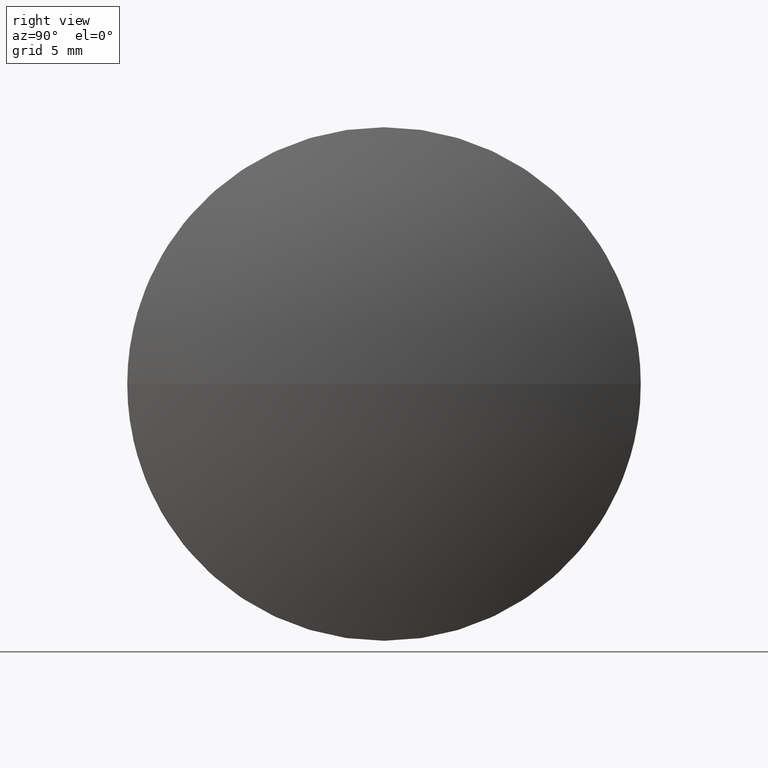
[diagram: clean part render]
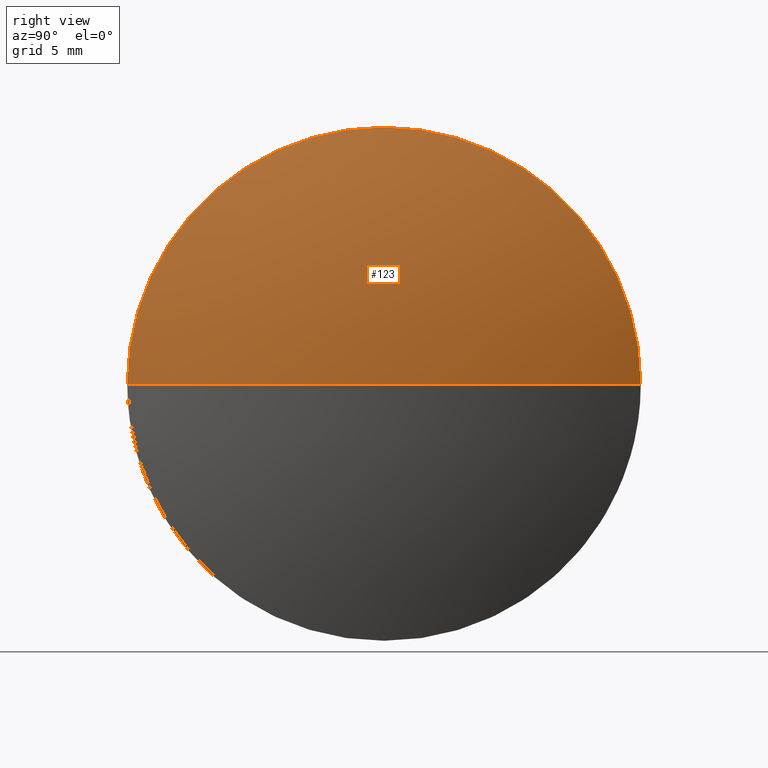
[diagram: same view with one face highlighted and labeled with its STEP entity id]
A machine part, right view. The second image highlights one B-rep face of the part: STEP entity #123.
In plain terms, the highlighted spherical surface has radius 36.213 mm.
Its self-contained STEP definition (entity closure, byte-faithful):
#11 = VERTEX_POINT ( 'NONE', #93 ) ;
#12 = DIRECTION ( 'NONE',  ( 0.0000000000000000000, 0.0000000000000000000, 1.000000000000000000 ) ) ;
#22 = ORIENTED_EDGE ( 'NONE', *, *, #155, .F. ) ;
#23 = CARTESIAN_POINT ( 'NONE',  ( 478.6849602909269400, 137.2007882096437800, 0.0000000000000000000 ) ) ;
#26 = AXIS2_PLACEMENT_3D ( 'NONE', #56, #152, #12 ) ;
#32 = CIRCLE ( 'NONE', #73, 36.21304347826092900 ) ;
#40 = CARTESIAN_POINT ( 'NONE',  ( 444.7719168126660600, 137.2007882096437500, 0.0000000000000000000 ) ) ;
#42 = VERTEX_POINT ( 'NONE', #109 ) ;
#44 = EDGE_CURVE ( 'NONE', #157, #42, #32, .T. ) ;
#47 = VERTEX_POINT ( 'NONE', #119 ) ;
#56 = CARTESIAN_POINT ( 'NONE',  ( 478.6849602909269400, 137.2007882096437800, 0.0000000000000000000 ) ) ;
#68 = CARTESIAN_POINT ( 'NONE',  ( 480.9849602909269500, 137.2007882096437500, 0.0000000000000000000 ) ) ;
#69 = EDGE_CURVE ( 'NONE', #47, #11, #102, .T. ) ;
#73 = AXIS2_PLACEMENT_3D ( 'NONE', #122, #147, #160 ) ;
#75 = EDGE_LOOP ( 'NONE', ( #103, #156, #142, #22 ) ) ;
#82 = DIRECTION ( 'NONE',  ( 1.000000000000000000, 0.0000000000000000000, 0.0000000000000000000 ) ) ;
#91 = DIRECTION ( 'NONE',  ( 0.0000000000000000000, 0.0000000000000000000, 1.000000000000000000 ) ) ;
#93 = CARTESIAN_POINT ( 'NONE',  ( 478.6849602909269400, 149.9007882096438200, 0.0000000000000000000 ) ) ;
#94 = SPHERICAL_SURFACE ( 'NONE', #174, 36.21304347826092900 ) ;
#99 = CIRCLE ( 'NONE', #181, 36.21304347826092900 ) ;
#102 = CIRCLE ( 'NONE', #158, 12.70000000000004500 ) ;
#103 = ORIENTED_EDGE ( 'NONE', *, *, #44, .F. ) ;
#104 = EDGE_CURVE ( 'NONE', #157, #11, #99, .T. ) ;
#109 = CARTESIAN_POINT ( 'NONE',  ( 478.6849602909269400, 124.5007882096436900, -1.555301434917144500E-015 ) ) ;
#113 = DIRECTION ( 'NONE',  ( -0.0000000000000000000, 0.0000000000000000000, -1.000000000000000000 ) ) ;
#114 = DIRECTION ( 'NONE',  ( 0.0000000000000000000, 1.000000000000000000, 0.0000000000000000000 ) ) ;
#119 = CARTESIAN_POINT ( 'NONE',  ( 478.6849602909269400, 137.2007882096437800, 12.70000000000004500 ) ) ;
#122 = CARTESIAN_POINT ( 'NONE',  ( 444.7719168126660600, 137.2007882096437500, 0.0000000000000000000 ) ) ;
#123 = ADVANCED_FACE ( 'NONE', ( #144 ), #94, .T. ) ;
#142 = ORIENTED_EDGE ( 'NONE', *, *, #69, .F. ) ;
#144 = FACE_OUTER_BOUND ( 'NONE', #75, .T. ) ;
#147 = DIRECTION ( 'NONE',  ( 0.0000000000000000000, 1.224646799147353200E-016, -1.000000000000000000 ) ) ;
#152 = DIRECTION ( 'NONE',  ( -1.000000000000000000, -0.0000000000000000000, -0.0000000000000000000 ) ) ;
#155 = EDGE_CURVE ( 'NONE', #42, #47, #179, .T. ) ;
#156 = ORIENTED_EDGE ( 'NONE', *, *, #104, .T. ) ;
#157 = VERTEX_POINT ( 'NONE', #68 ) ;
#158 = AXIS2_PLACEMENT_3D ( 'NONE', #23, #172, #91 ) ;
#160 = DIRECTION ( 'NONE',  ( 0.0000000000000000000, 1.000000000000000000, 1.224646799147353500E-016 ) ) ;
#168 = CARTESIAN_POINT ( 'NONE',  ( 444.7719168126660600, 137.2007882096437500, 0.0000000000000000000 ) ) ;
#172 = DIRECTION ( 'NONE',  ( -1.000000000000000000, -0.0000000000000000000, -0.0000000000000000000 ) ) ;
#173 = DIRECTION ( 'NONE',  ( -0.0000000000000000000, 0.0000000000000000000, 1.000000000000000000 ) ) ;
#174 = AXIS2_PLACEMENT_3D ( 'NONE', #168, #113, #114 ) ;
#179 = CIRCLE ( 'NONE', #26, 12.70000000000004500 ) ;
#181 = AXIS2_PLACEMENT_3D ( 'NONE', #40, #173, #82 ) ;